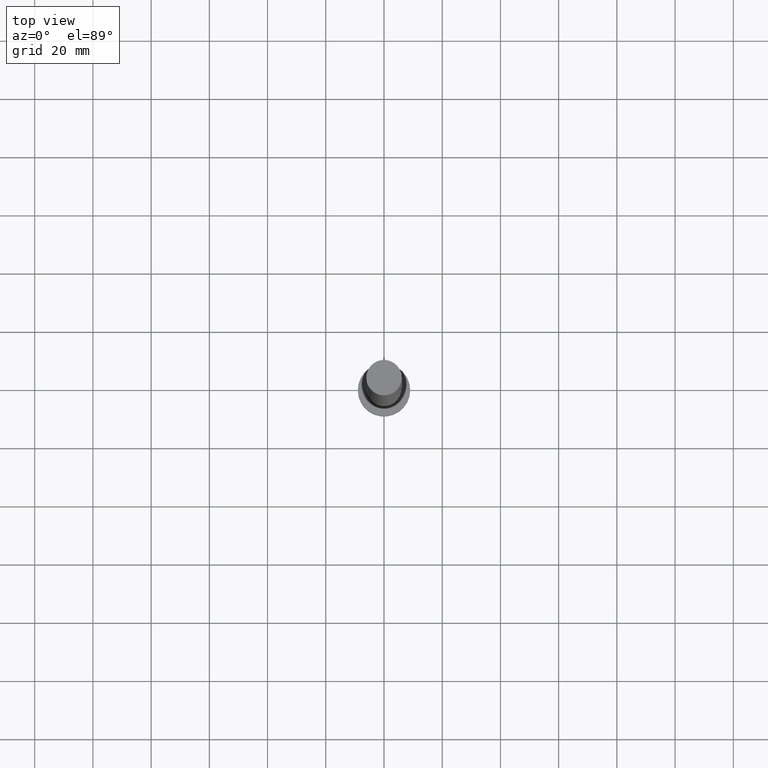
[diagram: clean part render]
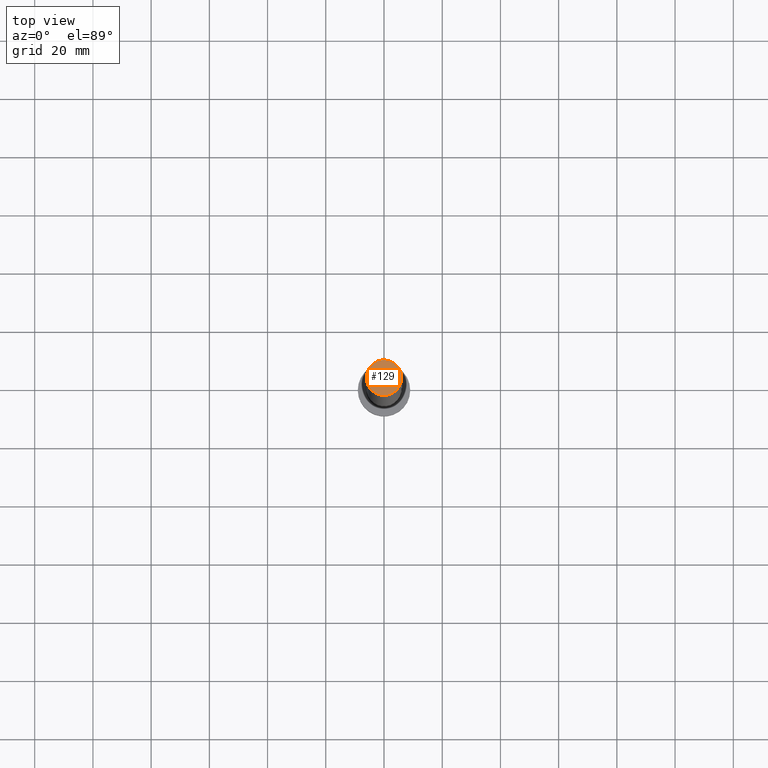
[diagram: same view with one face highlighted and labeled with its STEP entity id]
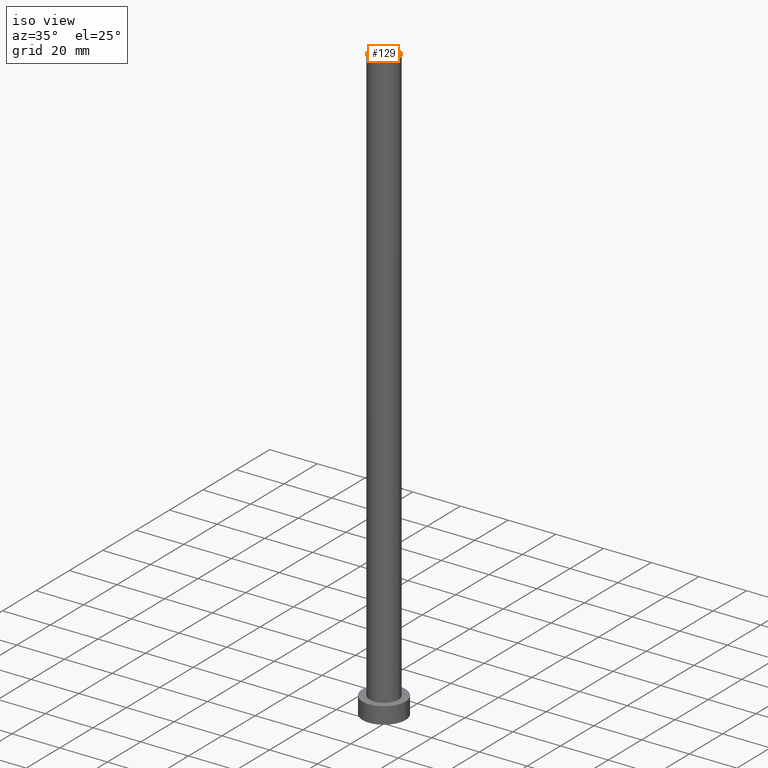
[diagram: same view with one face highlighted and labeled with its STEP entity id]
A machine part, top view. The second image highlights one B-rep face of the part: STEP entity #129.
A second angle (iso view) of the same face is appended — the face is thin or edge-on in the first view.
In plain terms, the highlighted planar face has unit normal (0, 0, 1).
Its self-contained STEP definition (entity closure, byte-faithful):
#15 = CARTESIAN_POINT ( 'NONE',  ( 0.000000000000000000, 0.000000000000000000, 250.0000000000000000 ) ) ;
#25 = AXIS2_PLACEMENT_3D ( 'NONE', #151, #34, #104 ) ;
#28 = DIRECTION ( 'NONE',  ( 0.000000000000000000, 0.000000000000000000, 1.000000000000000000 ) ) ;
#29 = PLANE ( 'NONE',  #25 ) ;
#34 = DIRECTION ( 'NONE',  ( 0.000000000000000000, 0.000000000000000000, 1.000000000000000000 ) ) ;
#45 = EDGE_CURVE ( 'NONE', #166, #251, #230, .T. ) ;
#59 = ORIENTED_EDGE ( 'NONE', *, *, #45, .T. ) ;
#87 = CARTESIAN_POINT ( 'NONE',  ( -6.099999999999999645, 0.000000000000000000, 250.0000000000000000 ) ) ;
#93 = ORIENTED_EDGE ( 'NONE', *, *, #157, .T. ) ;
#104 = DIRECTION ( 'NONE',  ( 1.000000000000000000, 0.000000000000000000, -0.000000000000000000 ) ) ;
#129 = ADVANCED_FACE ( 'NONE', ( #210 ), #29, .T. ) ;
#131 = CARTESIAN_POINT ( 'NONE',  ( 6.099999999999999645, 7.470345474798854293E-16, 250.0000000000000000 ) ) ;
#133 = DIRECTION ( 'NONE',  ( 1.000000000000000000, 0.000000000000000000, 0.000000000000000000 ) ) ;
#143 = EDGE_LOOP ( 'NONE', ( #59, #93 ) ) ;
#151 = CARTESIAN_POINT ( 'NONE',  ( 0.000000000000000000, 0.000000000000000000, 250.0000000000000000 ) ) ;
#154 = DIRECTION ( 'NONE',  ( 1.000000000000000000, 0.000000000000000000, 0.000000000000000000 ) ) ;
#157 = EDGE_CURVE ( 'NONE', #251, #166, #207, .T. ) ;
#166 = VERTEX_POINT ( 'NONE', #87 ) ;
#201 = DIRECTION ( 'NONE',  ( 0.000000000000000000, 0.000000000000000000, 1.000000000000000000 ) ) ;
#207 = CIRCLE ( 'NONE', #236, 6.099999999999999645 ) ;
#210 = FACE_OUTER_BOUND ( 'NONE', #143, .T. ) ;
#230 = CIRCLE ( 'NONE', #250, 6.099999999999999645 ) ;
#236 = AXIS2_PLACEMENT_3D ( 'NONE', #245, #201, #133 ) ;
#245 = CARTESIAN_POINT ( 'NONE',  ( 0.000000000000000000, 0.000000000000000000, 250.0000000000000000 ) ) ;
#250 = AXIS2_PLACEMENT_3D ( 'NONE', #15, #28, #154 ) ;
#251 = VERTEX_POINT ( 'NONE', #131 ) ;